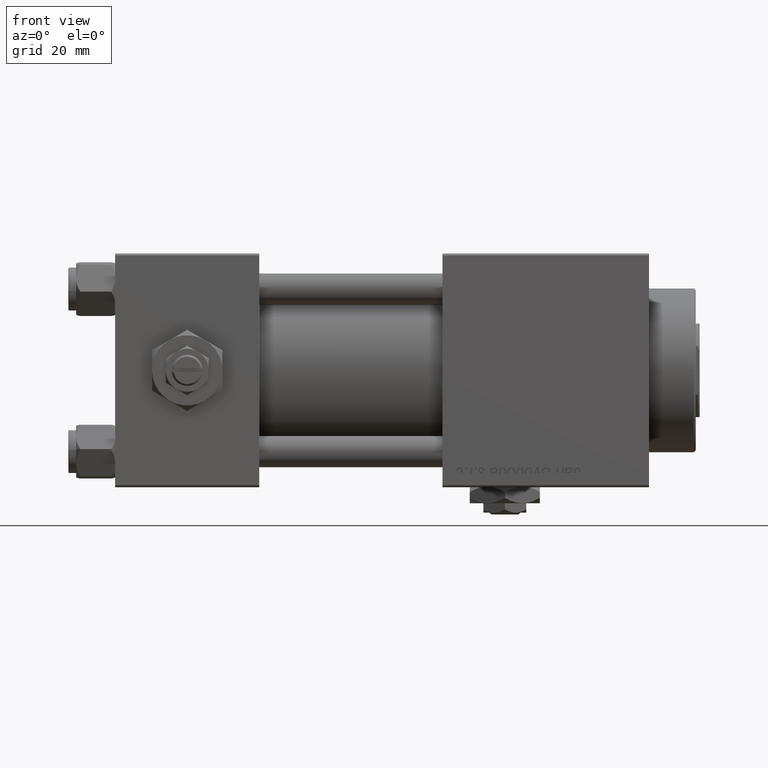
[diagram: clean part render]
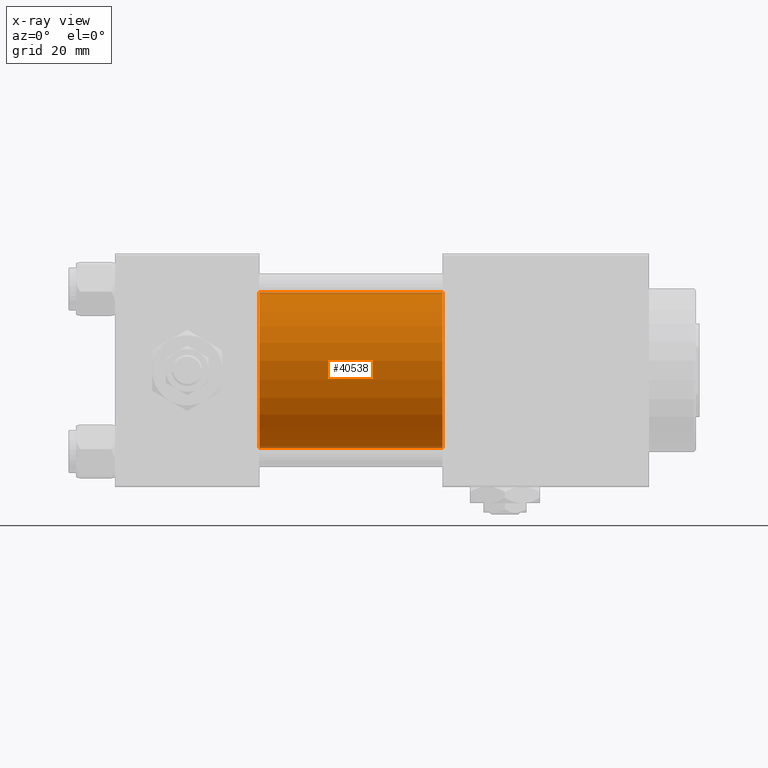
[diagram: x-ray — body ghosted, one internal face saturated and labeled with its STEP entity id]
A machine part, front view, then the same camera in x-ray: the body is ghosted and one INTERNAL B-rep face — a face not visible from any outside direction — is saturated and labeled: STEP entity #40538.
In plain terms, the highlighted cylindrical surface (partial cylindrical patch) has radius 20 mm, axis along (-1, -0, -0).
Its self-contained STEP definition (entity closure, byte-faithful):
#1035 = AXIS2_PLACEMENT_3D ( 'NONE', #32417, #38073, #42243 ) ;
#2250 = FACE_OUTER_BOUND ( 'NONE', #25205, .T. ) ;
#2452 = DIRECTION ( 'NONE',  ( 1.000000000000000000, 0.000000000000000000, 0.000000000000000000 ) ) ;
#3798 = EDGE_CURVE ( 'NONE', #41039, #9054, #37222, .T. ) ;
#9054 = VERTEX_POINT ( 'NONE', #50705 ) ;
#10579 = CARTESIAN_POINT ( 'NONE',  ( 83.99999999999998579, -2.602085213965210642E-15, 0.000000000000000000 ) ) ;
#11093 = DIRECTION ( 'NONE',  ( 0.000000000000000000, 0.000000000000000000, -1.000000000000000000 ) ) ;
#16457 = CARTESIAN_POINT ( 'NONE',  ( 83.99999999999998579, -1.527916156705042519E-16, -20.00000000000000000 ) ) ;
#17500 = VECTOR ( 'NONE', #29567, 1000.000000000000000 ) ;
#20844 = DIRECTION ( 'NONE',  ( -1.000000000000000000, -0.000000000000000000, -0.000000000000000000 ) ) ;
#24071 = EDGE_CURVE ( 'NONE', #41039, #32814, #33303, .T. ) ;
#25155 = CARTESIAN_POINT ( 'NONE',  ( 83.99999999999998579, -2.602085213965210642E-15, 20.00000000000000000 ) ) ;
#25205 = EDGE_LOOP ( 'NONE', ( #49552, #28227, #54937, #34433 ) ) ;
#28227 = ORIENTED_EDGE ( 'NONE', *, *, #43314, .T. ) ;
#29567 = DIRECTION ( 'NONE',  ( -1.000000000000000000, -0.000000000000000000, -0.000000000000000000 ) ) ;
#32417 = CARTESIAN_POINT ( 'NONE',  ( 37.00000000000000000, -2.602085213965210642E-15, 0.000000000000000000 ) ) ;
#32814 = VERTEX_POINT ( 'NONE', #16457 ) ;
#32901 = DIRECTION ( 'NONE',  ( -1.000000000000000000, -0.000000000000000000, -0.000000000000000000 ) ) ;
#33303 = CIRCLE ( 'NONE', #37113, 20.00000000000000000 ) ;
#34433 = ORIENTED_EDGE ( 'NONE', *, *, #3798, .F. ) ;
#35597 = AXIS2_PLACEMENT_3D ( 'NONE', #10579, #32901, #55834 ) ;
#37113 = AXIS2_PLACEMENT_3D ( 'NONE', #56347, #2452, #11093 ) ;
#37222 = LINE ( 'NONE', #55404, #57178 ) ;
#38073 = DIRECTION ( 'NONE',  ( 1.000000000000000000, 0.000000000000000000, 0.000000000000000000 ) ) ;
#40538 = ADVANCED_FACE ( 'NONE', ( #2250 ), #43016, .F. ) ;
#41039 = VERTEX_POINT ( 'NONE', #25155 ) ;
#42243 = DIRECTION ( 'NONE',  ( 0.000000000000000000, 0.000000000000000000, -1.000000000000000000 ) ) ;
#43016 = CYLINDRICAL_SURFACE ( 'NONE', #35597, 20.00000000000000000 ) ;
#43314 = EDGE_CURVE ( 'NONE', #32814, #55049, #57567, .T. ) ;
#43451 = CARTESIAN_POINT ( 'NONE',  ( 37.00000000000000000, -1.527916156705042519E-16, -20.00000000000000000 ) ) ;
#43852 = CARTESIAN_POINT ( 'NONE',  ( 83.99999999999998579, -1.527916156705042519E-16, -20.00000000000000000 ) ) ;
#49552 = ORIENTED_EDGE ( 'NONE', *, *, #24071, .T. ) ;
#50705 = CARTESIAN_POINT ( 'NONE',  ( 37.00000000000000000, -2.602085213965210642E-15, 20.00000000000000000 ) ) ;
#51429 = CIRCLE ( 'NONE', #1035, 20.00000000000000000 ) ;
#52216 = EDGE_CURVE ( 'NONE', #9054, #55049, #51429, .T. ) ;
#54937 = ORIENTED_EDGE ( 'NONE', *, *, #52216, .F. ) ;
#55049 = VERTEX_POINT ( 'NONE', #43451 ) ;
#55404 = CARTESIAN_POINT ( 'NONE',  ( 83.99999999999998579, -2.602085213965210642E-15, 20.00000000000000000 ) ) ;
#55834 = DIRECTION ( 'NONE',  ( 0.000000000000000000, 0.000000000000000000, 1.000000000000000000 ) ) ;
#56347 = CARTESIAN_POINT ( 'NONE',  ( 83.99999999999998579, -2.602085213965210642E-15, 0.000000000000000000 ) ) ;
#57178 = VECTOR ( 'NONE', #20844, 1000.000000000000000 ) ;
#57567 = LINE ( 'NONE', #43852, #17500 ) ;